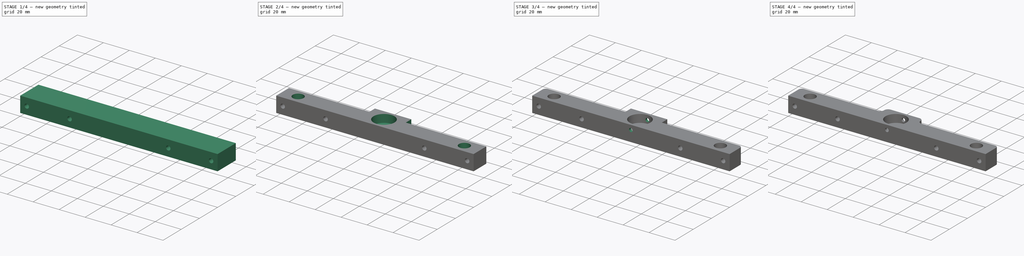
[diagram: build sequence overview — one tinted view per stage of 4, left to right]
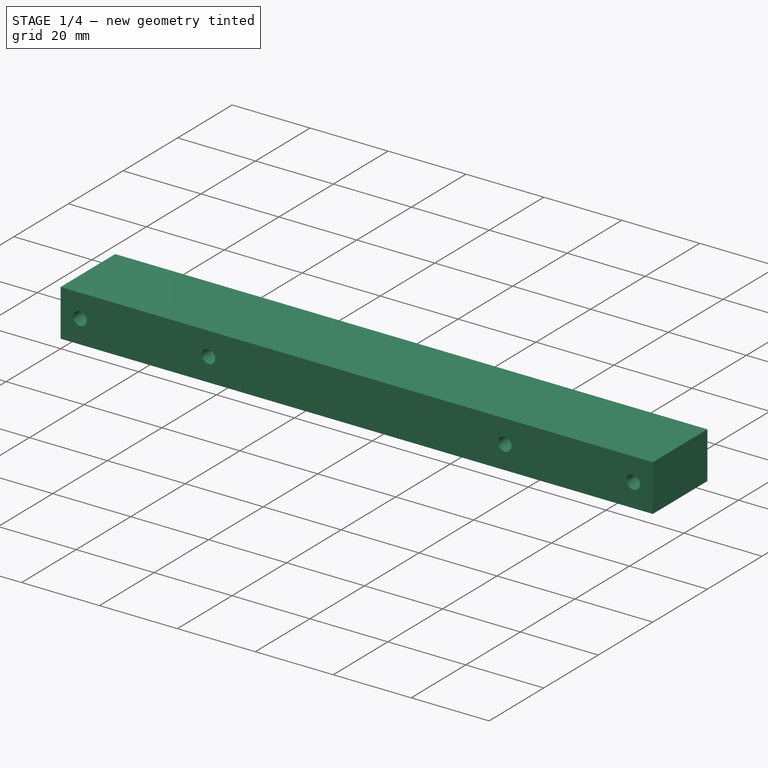
[diagram: stage 1 of 4 — iso view after this stage's code; geometry added in this stage tinted green]
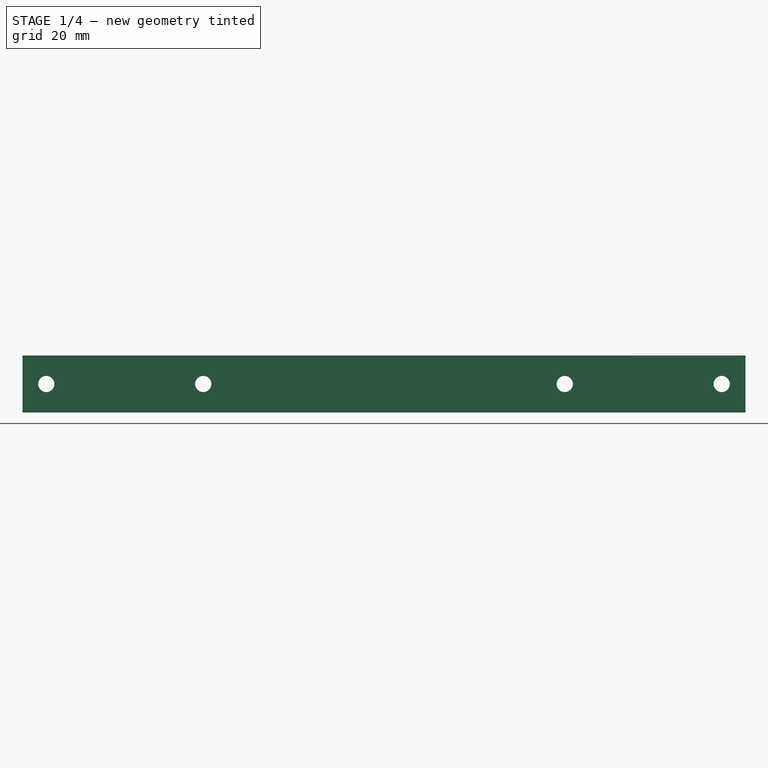
[diagram: stage 1 of 4 — front view after this stage's code; geometry added in this stage tinted green]
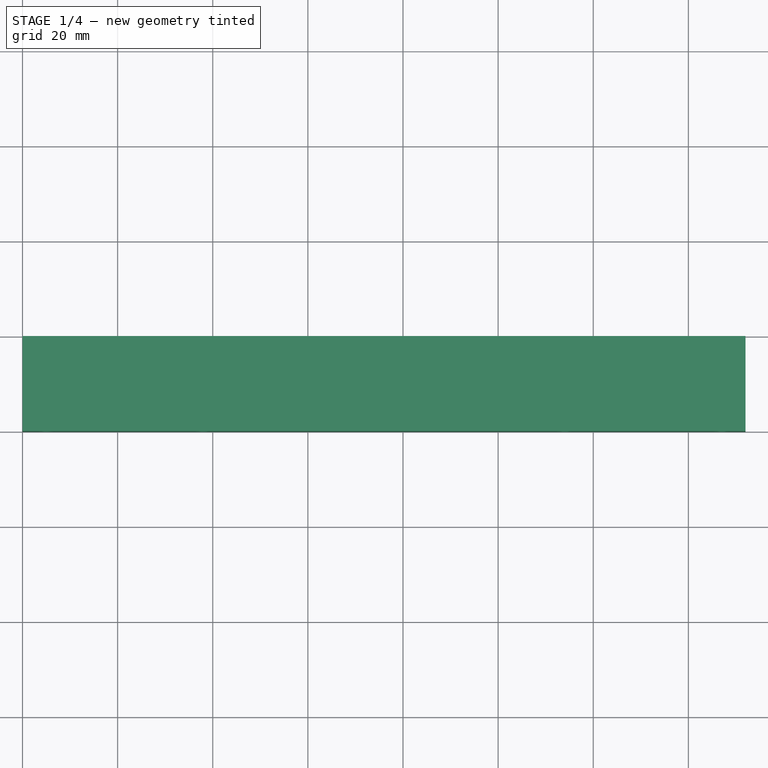
[diagram: stage 1 of 4 — top view after this stage's code; geometry added in this stage tinted green]
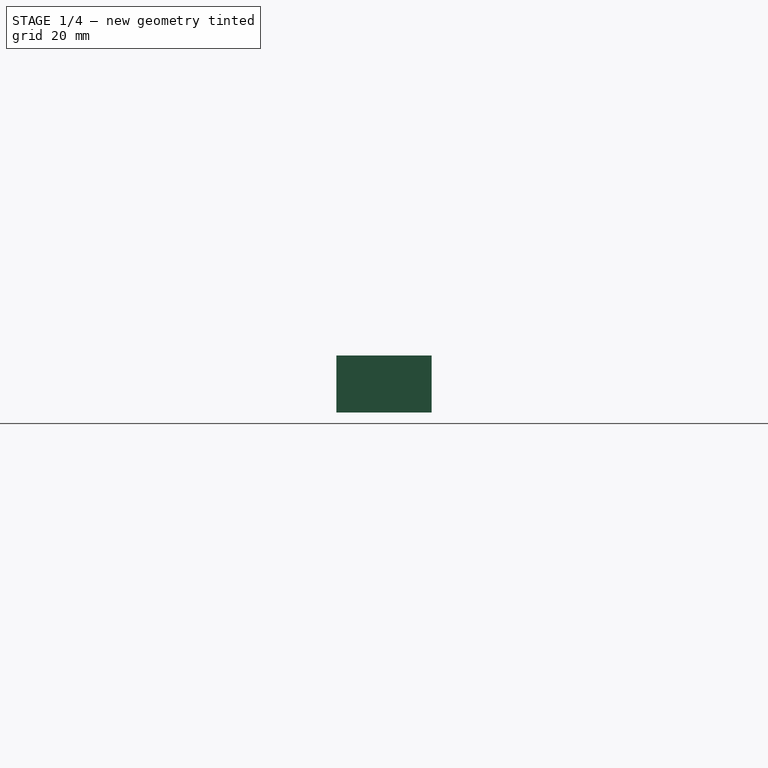
[diagram: stage 1 of 4 — right view after this stage's code; geometry added in this stage tinted green]
FCSTD DOCUMENT  (FreeCAD 0.16R6706 (Git))
Label: z-side-mounts
License: All rights reserved
LicenseURL: http://en.wikipedia.org/wiki/All_rights_reserved
objects: Sketcher::SketchObject×6, PartDesign::Pocket×6, PartDesign::Fillet×3, Part::Box×1
note: 22 computed .brp shape members not serialized (recipe doc carries the construction recipe); baked Part::Feature solids carry a one-line shape summary decoded from their .brp

FEATURE [Part::Box] Box  label="Cube"
  Height = 12
  Length = 152
  Width = 20
FEATURE [Sketcher::SketchObject] Sketch  label="mnt holes"
  Placement = pos=(0,0,0) rot=(1,0,0;1.5708rad)
  Support = -> Box [Face3]
  sketch-geometry (4):
    g0: Circle CenterX=5 CenterY=6 CenterZ=0 NormalX=0 NormalY=0 NormalZ=1 Radius=1.7
    g1: Circle CenterX=38 CenterY=6 CenterZ=0 NormalX=0 NormalY=0 NormalZ=1 Radius=1.7
    g2: Circle CenterX=114 CenterY=6 CenterZ=0 NormalX=0 NormalY=0 NormalZ=1 Radius=1.7
    g3: Circle CenterX=147 CenterY=6 CenterZ=0 NormalX=0 NormalY=0 NormalZ=1 Radius=1.7
  constraints (10):
    c: Equal(g1,g2)
    c: Radius(g0) = 1.7
    c: DistanceY(g0) = 6
    c: DistanceY(g1) = 6
    c: DistanceY(g2) = 6
    c: DistanceY(g3) = 6
    c: DistanceX(g3) = 147
    c: DistanceX(g2) = 114
    c: DistanceX(g1) = 38
    c: DistanceX(g0) = 5
FEATURE [PartDesign::Pocket] Pocket  label="mnt holes pk"
  Length = 5
  Sketch = -> Sketch
  Type = 1
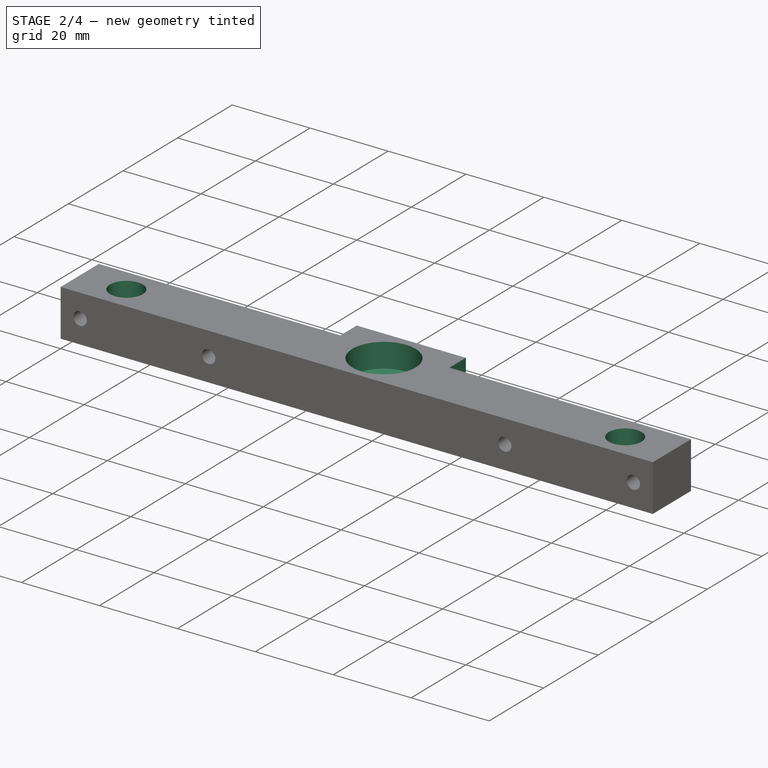
[diagram: stage 2 of 4 — iso view after this stage's code; geometry added in this stage tinted green]
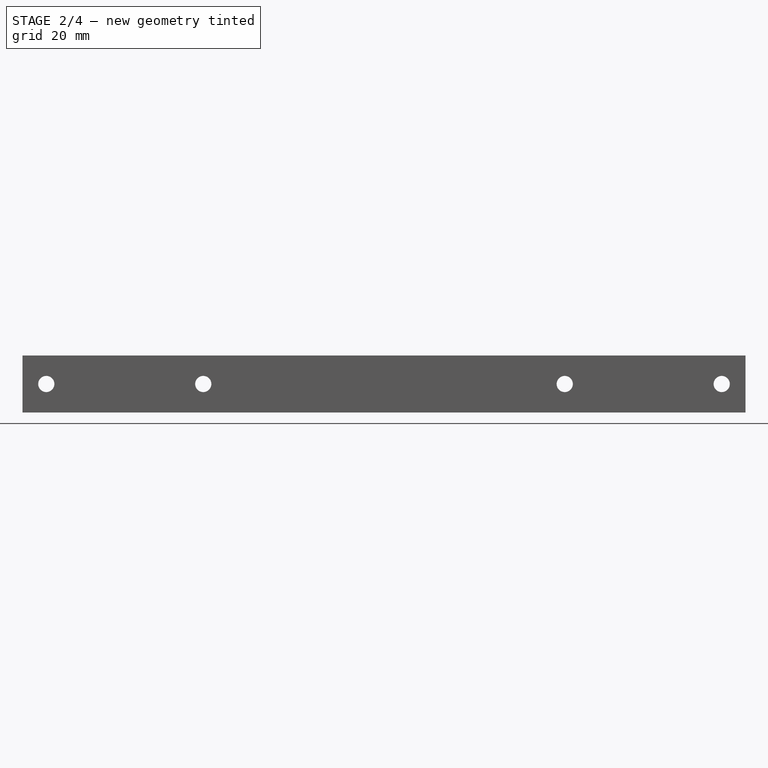
[diagram: stage 2 of 4 — front view after this stage's code; geometry added in this stage tinted green]
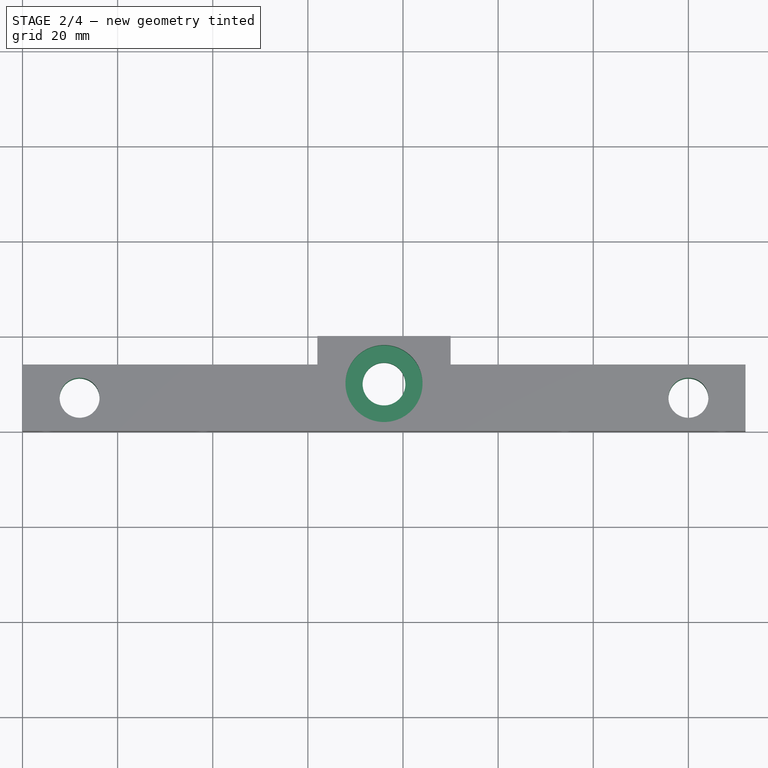
[diagram: stage 2 of 4 — top view after this stage's code; geometry added in this stage tinted green]
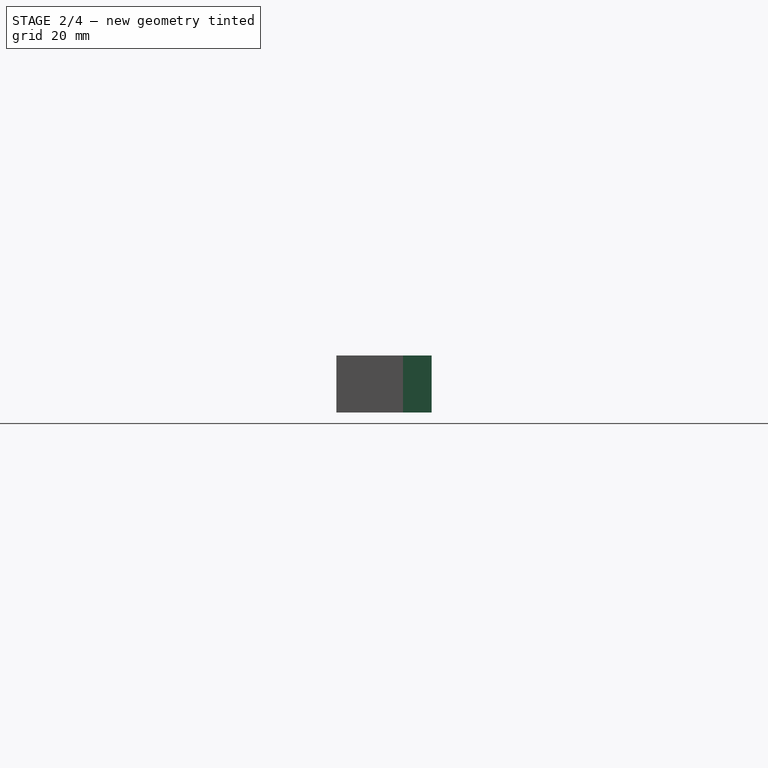
[diagram: stage 2 of 4 — right view after this stage's code; geometry added in this stage tinted green]
FEATURE [Sketcher::SketchObject] Sketch001  label="top holes"
  Placement = pos=(0,0,12) rot=(0,0,1;0rad)
  Support = -> Pocket [Face3]
  sketch-geometry (11):
    g0: Circle CenterX=12 CenterY=7 CenterZ=0 NormalX=0 NormalY=0 NormalZ=1 Radius=4.2
    g1: Circle CenterX=140 CenterY=7 CenterZ=0 NormalX=0 NormalY=0 NormalZ=1 Radius=4.2
    g2: Circle CenterX=76 CenterY=10 CenterZ=0 NormalX=0 NormalY=0 NormalZ=1 Radius=4.5
    g3: LineSegment StartX=0 StartY=22 StartZ=0 EndX=62 EndY=22 EndZ=0
    g4: LineSegment StartX=62 StartY=22 StartZ=0 EndX=62 EndY=14 EndZ=0
    g5: LineSegment StartX=62 StartY=14 StartZ=0 EndX=0 EndY=14 EndZ=0
    g6: LineSegment StartX=0 StartY=14 StartZ=0 EndX=0 EndY=22 EndZ=0
    g7: LineSegment StartX=90 StartY=23.3576 StartZ=0 EndX=152 EndY=23.3576 EndZ=0
    g8: LineSegment StartX=152 StartY=23.3576 StartZ=0 EndX=152 EndY=14 EndZ=0
    g9: LineSegment StartX=152 StartY=14 StartZ=0 EndX=90 EndY=14 EndZ=0
    g10: LineSegment StartX=90 StartY=14 StartZ=0 EndX=90 EndY=23.3576 EndZ=0
  constraints (31):
    c: Radius(g0) = 4.2
    c: Equal(g0,g1)
    c: Radius(g2) = 4.5
    c: DistanceY(g2) = 10
    c: DistanceY(g0) = 7
    c: DistanceY(g1) = 7
    c: DistanceX(g0) = 12
    c: DistanceX(g1) = 140
    c: DistanceX(g2) = 76
    c: Coincident(g3,g4)
    c: Coincident(g4,g5)
    c: Coincident(g5,g6)
    c: Coincident(g6,g3)
    c: Horizontal(g3)
    c: Horizontal(g5)
    c: Vertical(g4)
    c: Vertical(g6)
    c: Coincident(g7,g8)
    c: Coincident(g8,g9)
    c: Coincident(g9,g10)
    c: Coincident(g10,g7)
    c: Horizontal(g7)
    c: Horizontal(g9)
    c: Vertical(g8)
    c: Vertical(g10)
    c: DistanceX(g3) = 0
    c: DistanceX(g3) = 62
    c: Equal(g7,g3)
    c: DistanceX(g7) = 152
    c: DistanceY(g4) = 14
    c: DistanceY(g8) = 14
FEATURE [PartDesign::Pocket] Pocket001  label="top holes ct"
  Length = 5
  Sketch = -> Sketch001
  Type = 1
FEATURE [Sketcher::SketchObject] Sketch002  label="bearing sk"
  Placement = pos=(0,0,12) rot=(0,0,1;0rad)
  Support = -> Pocket001 [Face2]
  sketch-geometry (1):
    g0: Circle CenterX=76 CenterY=10 CenterZ=0 NormalX=0 NormalY=0 NormalZ=1 Radius=8.1
  constraints (3):
    c: Radius(g0) = 8.1
    c: DistanceY(g0) = 10
    c: DistanceX(g0) = 76
FEATURE [PartDesign::Pocket] Pocket002  label="bearing cut"
  Length = 6.2
  Sketch = -> Sketch002
  Type = 0
FEATURE [Sketcher::SketchObject] Sketch004
  Placement = pos=(0,14,0) rot=(0,0.707107,0.707107;3.14159rad)
  Support = -> Pocket002 [Face3]
  sketch-geometry (1):
    g0: Circle CenterX=-12 CenterY=6 CenterZ=0 NormalX=0 NormalY=0 NormalZ=1 Radius=1.4
  constraints (3):
    c: DistanceY(g0) = 6
    c: DistanceX(g0) = -12
    c: Radius(g0) = 1.4
FEATURE [PartDesign::Pocket] Pocket003
  Length = 5
  Sketch = -> Sketch004
  Type = 0
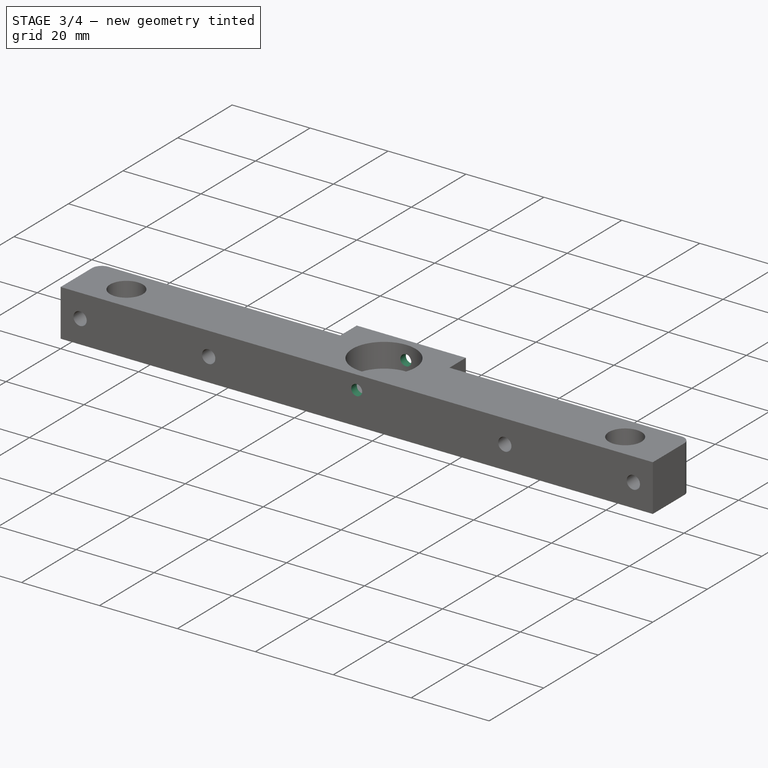
[diagram: stage 3 of 4 — iso view after this stage's code; geometry added in this stage tinted green]
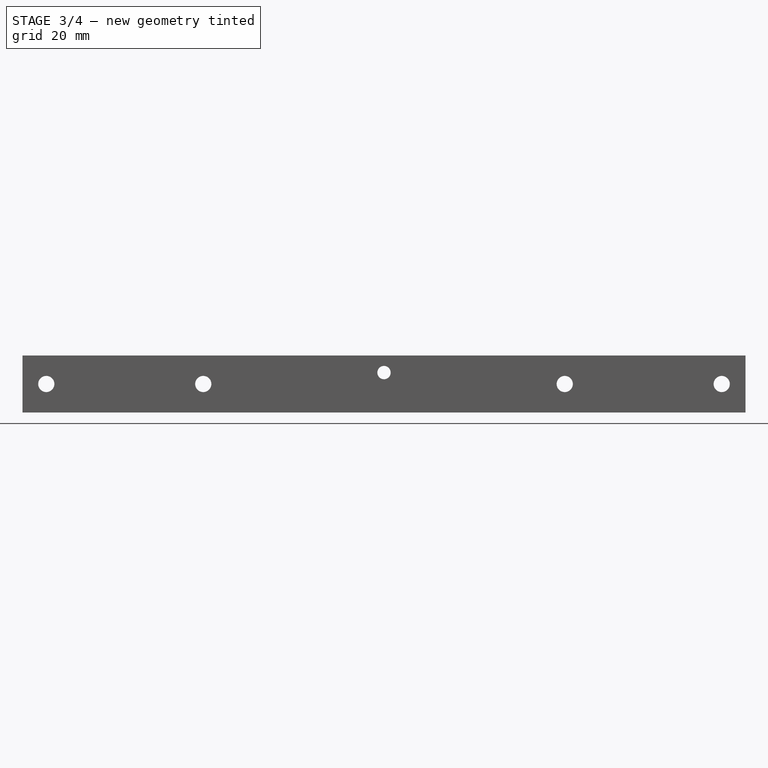
[diagram: stage 3 of 4 — front view after this stage's code; geometry added in this stage tinted green]
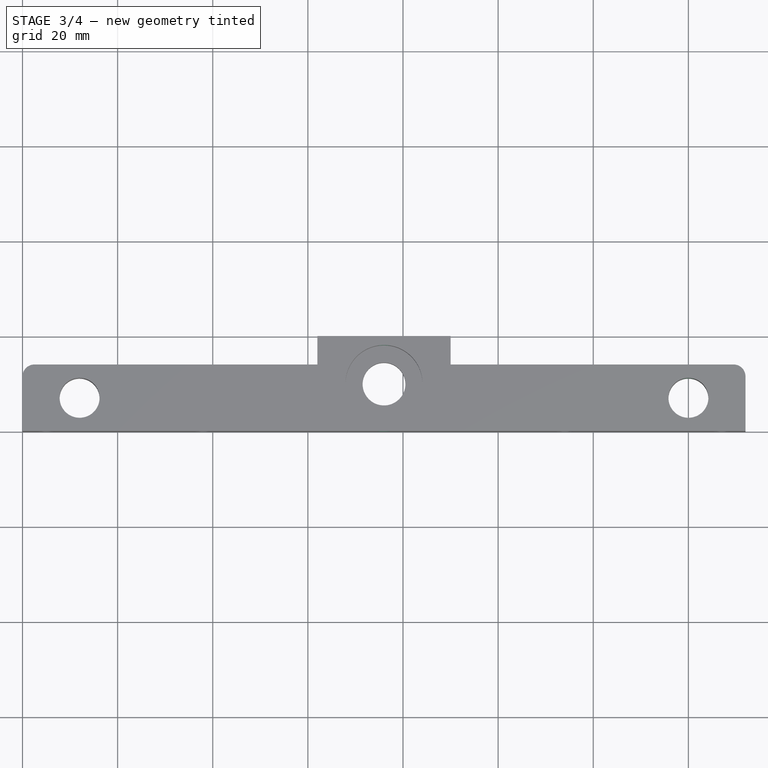
[diagram: stage 3 of 4 — top view after this stage's code; geometry added in this stage tinted green]
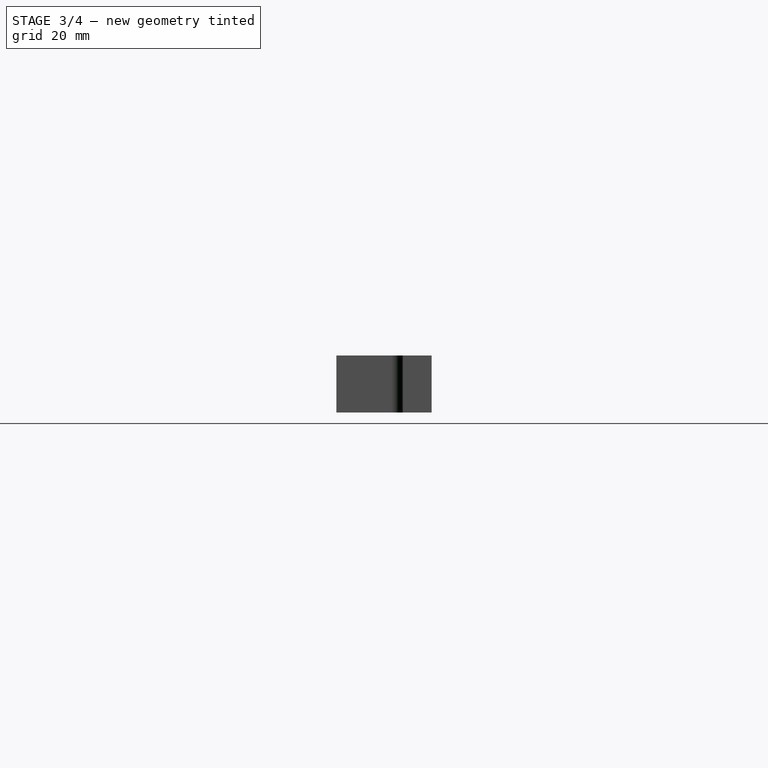
[diagram: stage 3 of 4 — right view after this stage's code; geometry added in this stage tinted green]
FEATURE [Sketcher::SketchObject] Sketch005
  Placement = pos=(0,14,0) rot=(0,0.707107,0.707107;3.14159rad)
  Support = -> Pocket003 [Face8]
  sketch-geometry (1):
    g0: Circle CenterX=-140 CenterY=6 CenterZ=0 NormalX=0 NormalY=0 NormalZ=1 Radius=1.4
  constraints (3):
    c: Radius(g0) = 1.4
    c: DistanceY(g0) = 6
    c: DistanceX(g0) = -140
FEATURE [PartDesign::Pocket] Pocket004
  Length = 5
  Sketch = -> Sketch005
  Type = 0
FEATURE [Sketcher::SketchObject] Sketch003  label="bearing set sk"
  Placement = pos=(0,20,0) rot=(0,0.707107,0.707107;3.14159rad)
  Support = -> Pocket004 [Face9]
  sketch-geometry (1):
    g0: Circle CenterX=-76 CenterY=8.4 CenterZ=0 NormalX=0 NormalY=0 NormalZ=1 Radius=1.4
  constraints (3):
    c: Radius(g0) = 1.4
    c: DistanceX(g0) = -76
    c: DistanceY(g0) = 8.4
FEATURE [PartDesign::Pocket] Pocket005
  Length = 5
  Sketch = -> Sketch003
  Type = 1
FEATURE [PartDesign::Fillet] Fillet
  Base = -> Pocket005 [Edge35,Edge2]
  Radius = 2.5
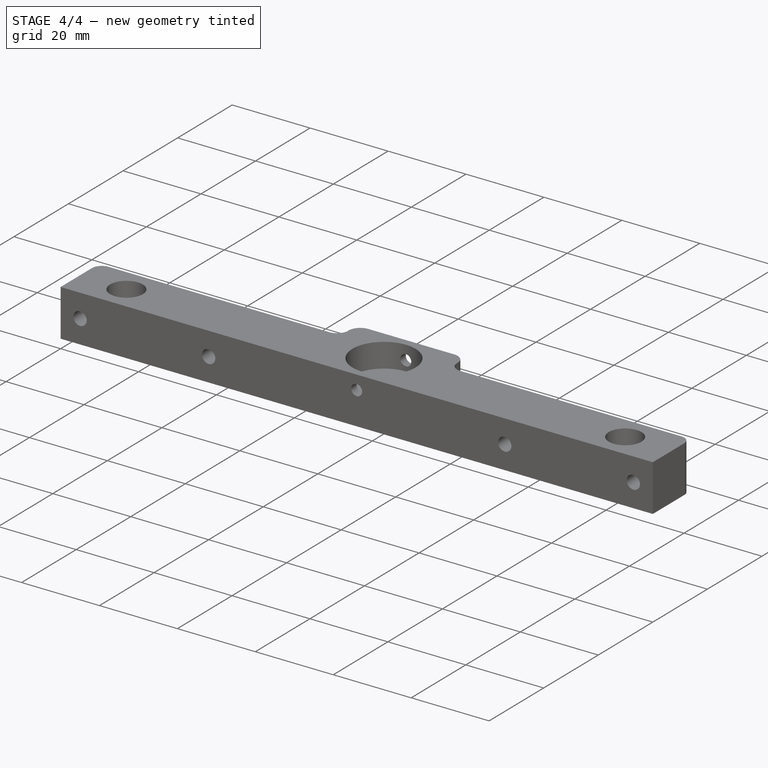
[diagram: stage 4 of 4 — iso view after this stage's code; geometry added in this stage tinted green]
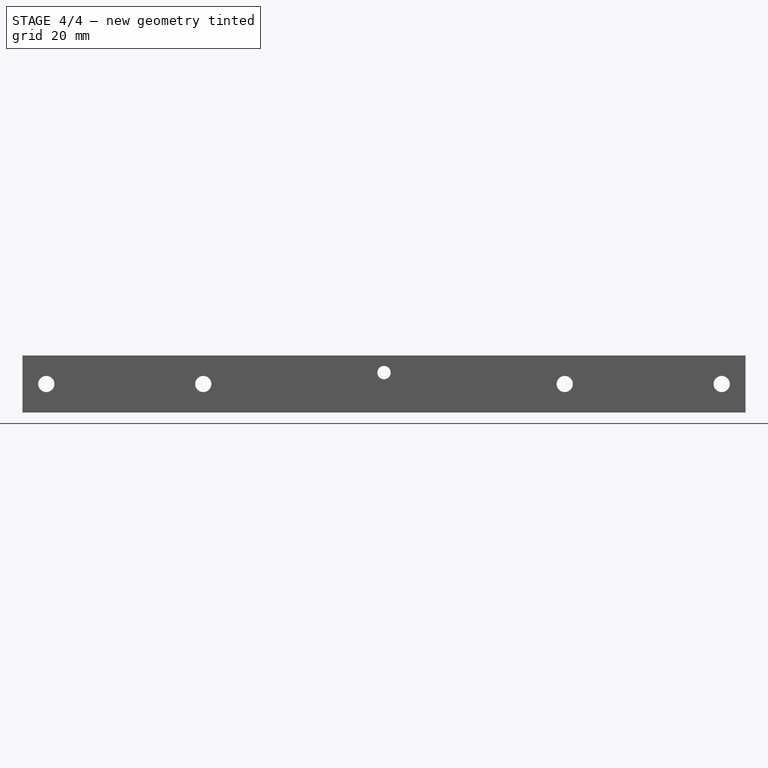
[diagram: stage 4 of 4 — front view after this stage's code; geometry added in this stage tinted green]
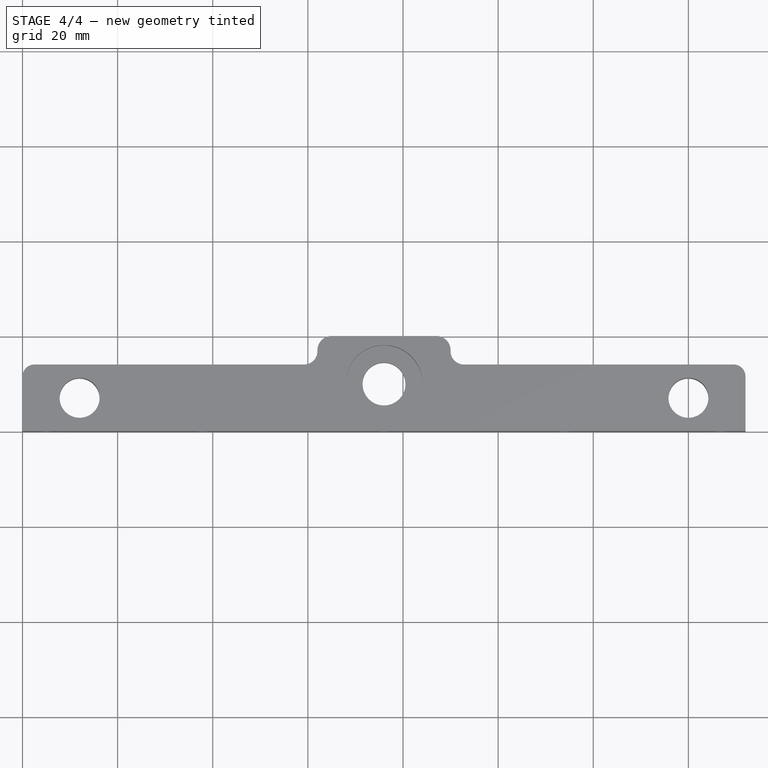
[diagram: stage 4 of 4 — top view after this stage's code; geometry added in this stage tinted green]
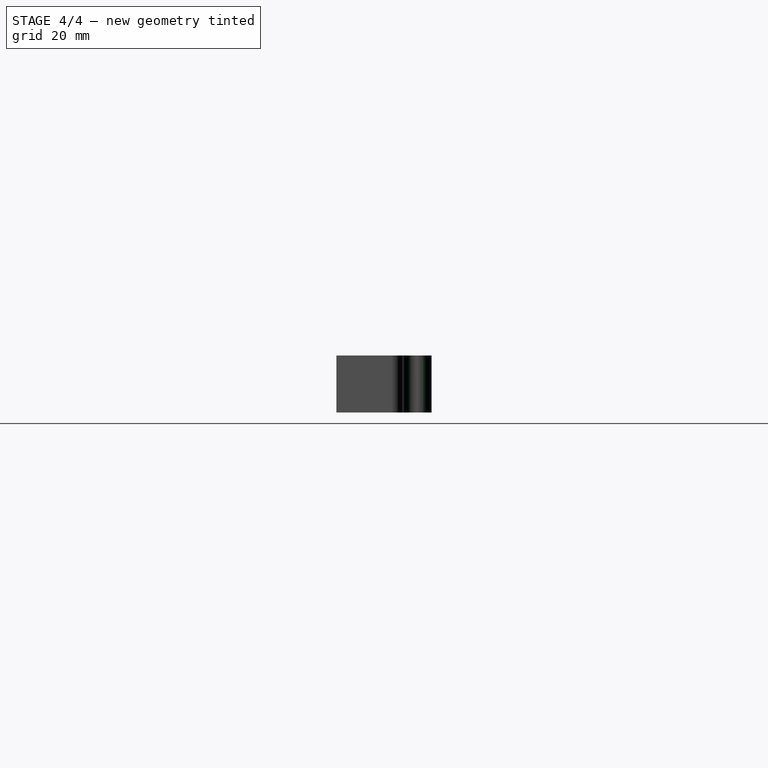
[diagram: stage 4 of 4 — right view after this stage's code; geometry added in this stage tinted green]
FEATURE [PartDesign::Fillet] Fillet001
  Base = -> Fillet [Edge43,Edge41]
  Radius = 3
FEATURE [PartDesign::Fillet] Fillet002
  Base = -> Fillet001 [Edge17,Edge35]
  Radius = 2.8
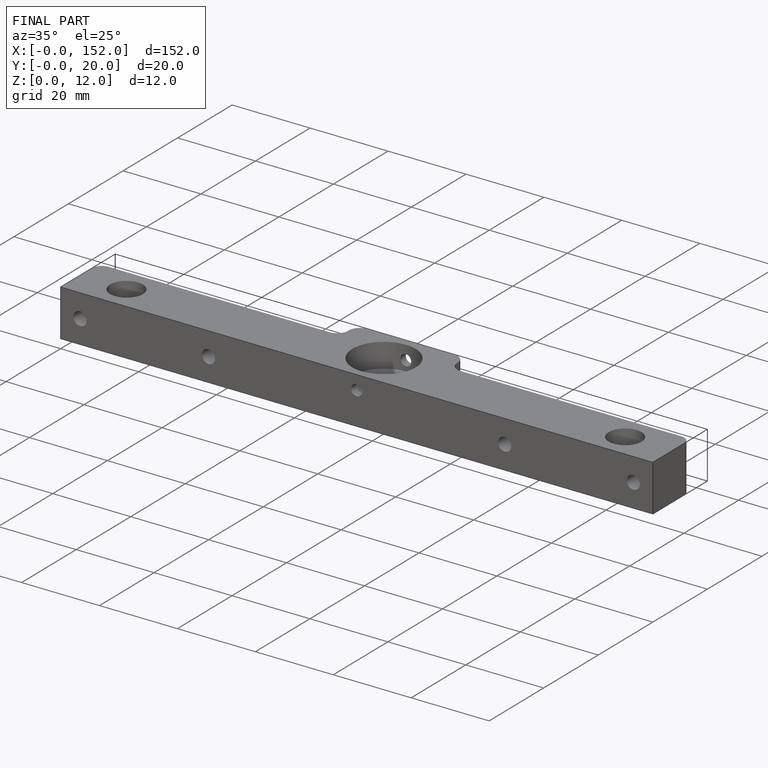
[diagram: finished part — iso view with bounding-box wireframe]
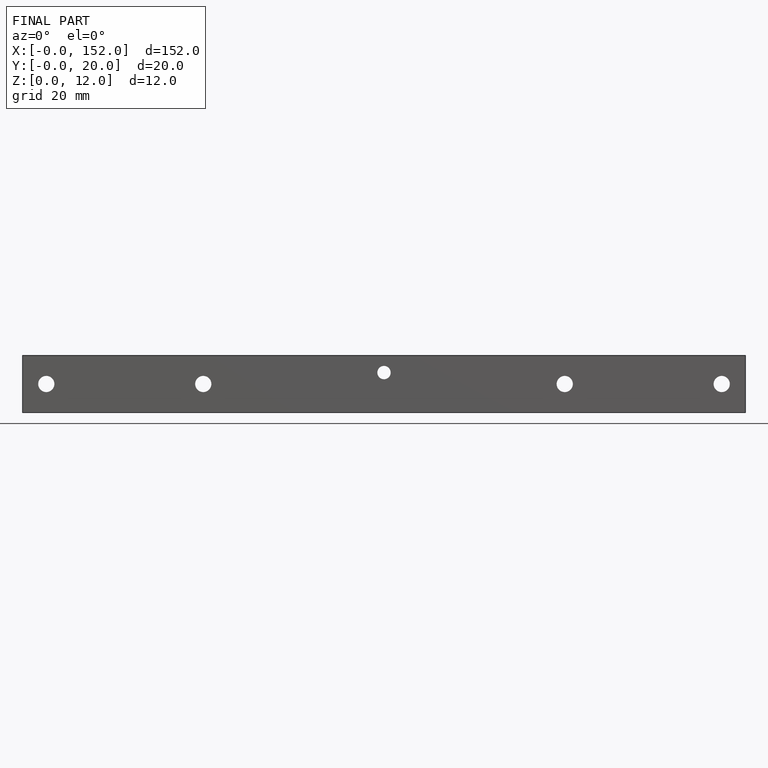
[diagram: finished part — front view with bounding-box wireframe]
